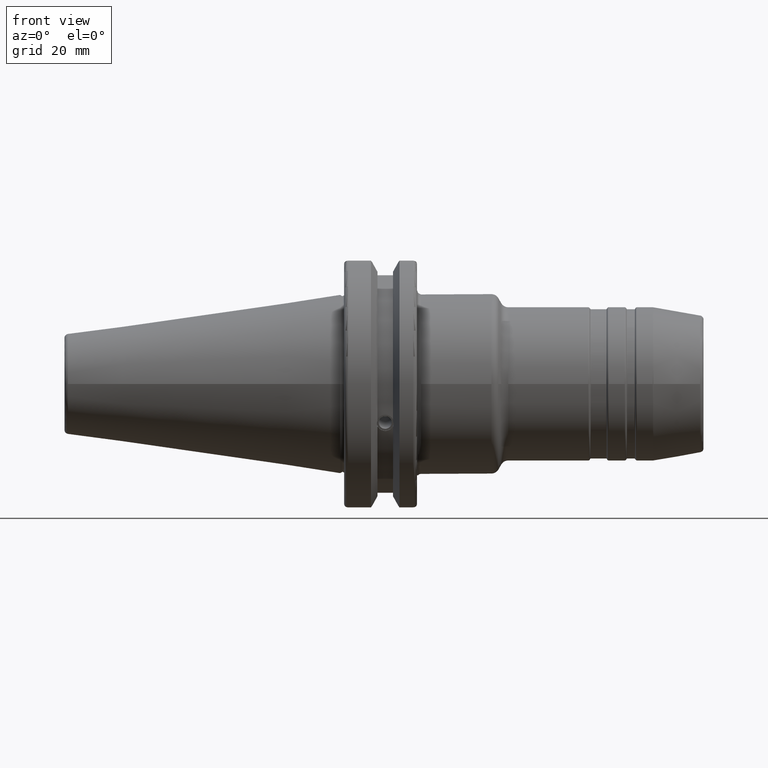
[diagram: clean part render]
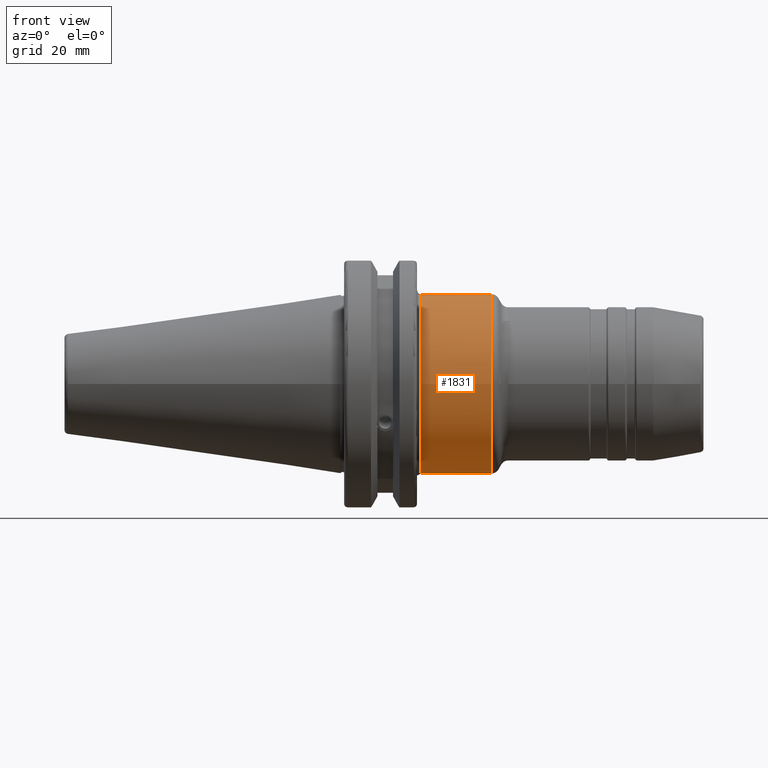
[diagram: same view with one face highlighted and labeled with its STEP entity id]
A machine part, front view. The second image highlights one B-rep face of the part: STEP entity #1831.
In plain terms, the highlighted cylindrical surface (bore or boss wall) has radius 22.25 mm, axis along (1, 0, 0).
Its self-contained STEP definition (entity closure, byte-faithful):
#135=CYLINDRICAL_SURFACE('',#1972,22.25);
#170=LINE('',#2847,#263);
#263=VECTOR('',#2249,22.25);
#377=FACE_OUTER_BOUND('',#483,.T.);
#483=EDGE_LOOP('',(#1244,#1245,#1246,#1247,#1248,#1249));
#610=CIRCLE('',#1970,22.25);
#611=CIRCLE('',#1971,22.25);
#612=CIRCLE('',#1973,22.25);
#613=CIRCLE('',#1974,22.25);
#739=VERTEX_POINT('',#2840);
#740=VERTEX_POINT('',#2842);
#741=VERTEX_POINT('',#2846);
#742=VERTEX_POINT('',#2848);
#938=EDGE_CURVE('',#739,#740,#610,.T.);
#939=EDGE_CURVE('',#740,#739,#611,.T.);
#940=EDGE_CURVE('',#740,#741,#170,.T.);
#941=EDGE_CURVE('',#742,#741,#612,.T.);
#942=EDGE_CURVE('',#741,#742,#613,.T.);
#1244=ORIENTED_EDGE('',*,*,#939,.F.);
#1245=ORIENTED_EDGE('',*,*,#940,.T.);
#1246=ORIENTED_EDGE('',*,*,#941,.F.);
#1247=ORIENTED_EDGE('',*,*,#942,.F.);
#1248=ORIENTED_EDGE('',*,*,#940,.F.);
#1249=ORIENTED_EDGE('',*,*,#938,.F.);
#1831=ADVANCED_FACE('',(#377),#135,.T.);
#1970=AXIS2_PLACEMENT_3D('',#2843,#2243,#2244);
#1971=AXIS2_PLACEMENT_3D('',#2844,#2245,#2246);
#1972=AXIS2_PLACEMENT_3D('',#2845,#2247,#2248);
#1973=AXIS2_PLACEMENT_3D('',#2849,#2250,#2251);
#1974=AXIS2_PLACEMENT_3D('',#2850,#2252,#2253);
#2243=DIRECTION('center_axis',(1.,0.,0.));
#2244=DIRECTION('ref_axis',(0.,-1.,1.83697019872103E-16));
#2245=DIRECTION('center_axis',(1.,0.,0.));
#2246=DIRECTION('ref_axis',(0.,-1.,1.83697019872103E-16));
#2247=DIRECTION('center_axis',(1.,0.,0.));
#2248=DIRECTION('ref_axis',(0.,1.,0.));
#2249=DIRECTION('',(-1.,0.,0.));
#2250=DIRECTION('center_axis',(-1.,0.,0.));
#2251=DIRECTION('ref_axis',(0.,-1.,-1.22464679914735E-16));
#2252=DIRECTION('center_axis',(-1.,0.,0.));
#2253=DIRECTION('ref_axis',(0.,-1.,-1.22464679914735E-16));
#2840=CARTESIAN_POINT('',(37.4689110867545,-2.72483912810286E-15,22.25));
#2842=CARTESIAN_POINT('',(37.4689110867545,-22.25,-2.72483912810286E-15));
#2843=CARTESIAN_POINT('Origin',(37.4689110867545,0.,0.));
#2844=CARTESIAN_POINT('Origin',(37.4689110867545,0.,0.));
#2845=CARTESIAN_POINT('Origin',(28.8368058125669,0.,0.));
#2846=CARTESIAN_POINT('',(20.05,-22.25,-2.72483912810286E-15));
#2847=CARTESIAN_POINT('',(28.8368058125669,-22.25,-2.72483912810286E-15));
#2848=CARTESIAN_POINT('',(20.05,-2.72483912810286E-15,-22.25));
#2849=CARTESIAN_POINT('Origin',(20.05,0.,0.));
#2850=CARTESIAN_POINT('Origin',(20.05,0.,0.));